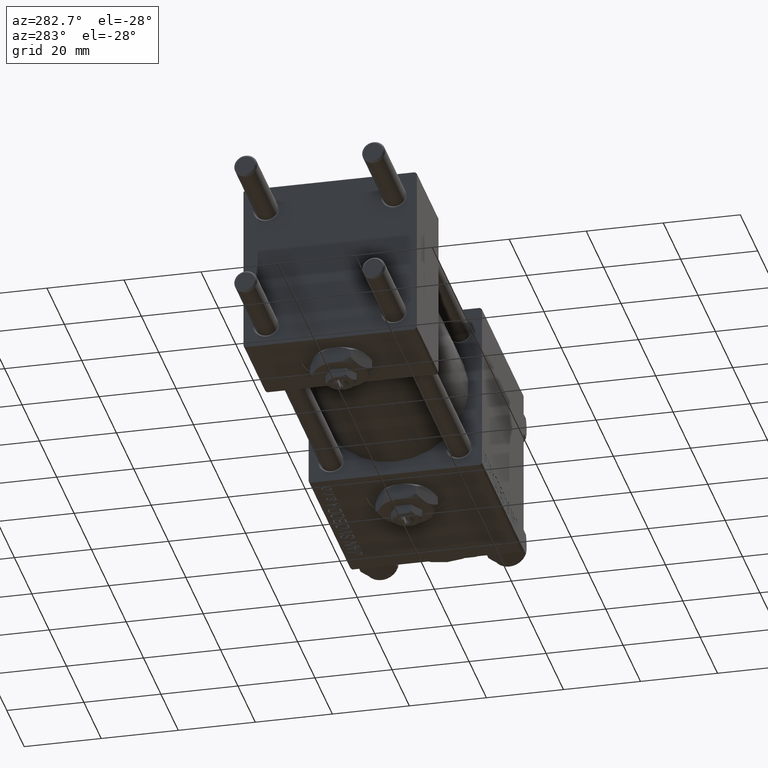
[diagram: clean part render]
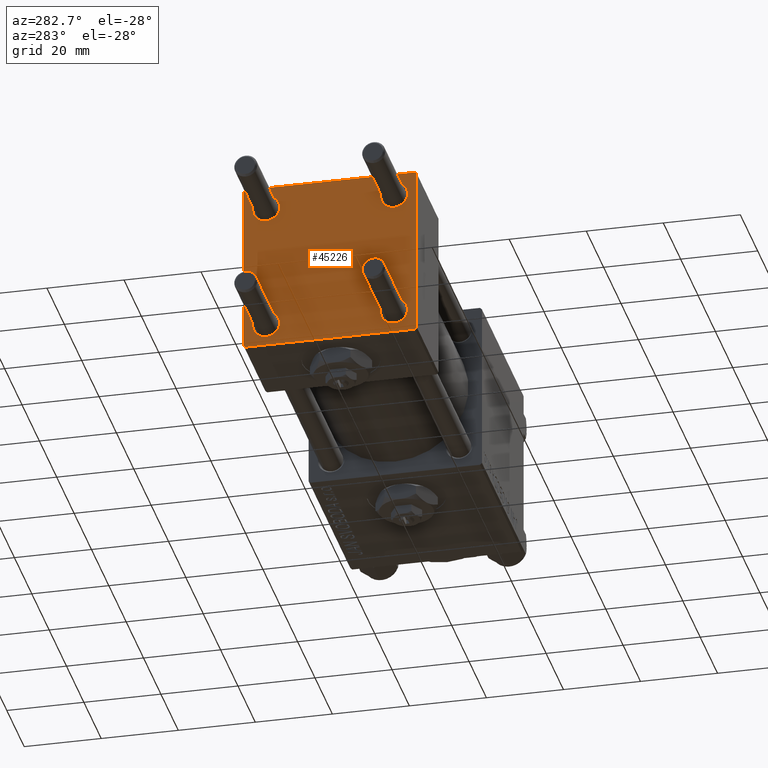
[diagram: same view with one face highlighted and labeled with its STEP entity id]
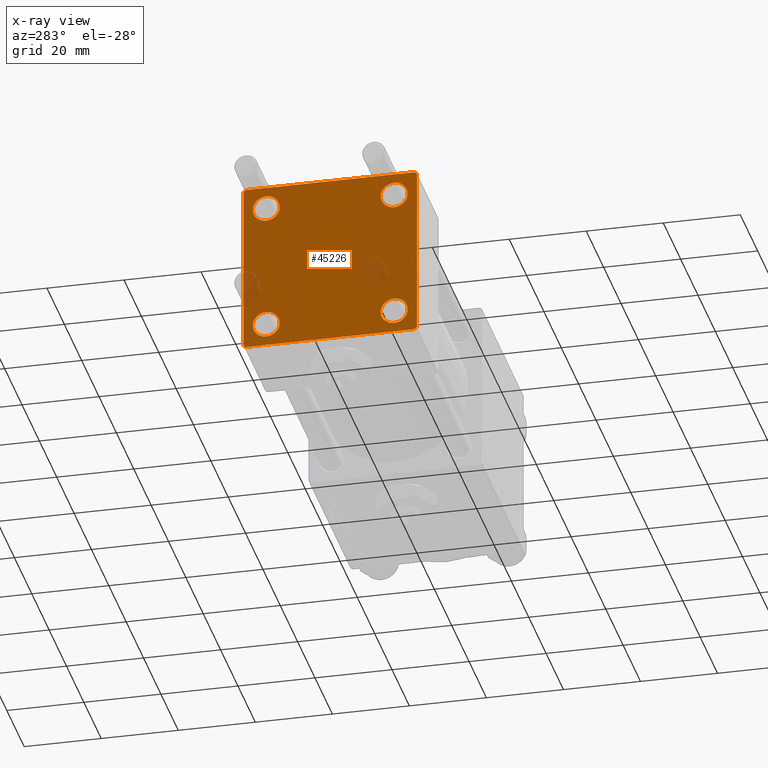
[diagram: x-ray of the same camera — body ghosted, the highlighted face saturated]
A machine part, auxiliary view. The second image highlights one B-rep face of the part: STEP entity #45226.
The next image is the same camera in x-ray: the body ghosted, the highlighted face saturated — about 4% of this face is hidden behind the body in this view.
In plain terms, the highlighted planar face has unit normal (-1, 0, 0).
Its self-contained STEP definition (entity closure, byte-faithful):
#278 = DIRECTION ( 'NONE',  ( 0.000000000000000000, -1.000000000000000000, -2.312964634635742957E-16 ) ) ;
#530 = VERTEX_POINT ( 'NONE', #15935 ) ;
#590 = FACE_BOUND ( 'NONE', #49147, .T. ) ;
#694 = CARTESIAN_POINT ( 'NONE',  ( 0.000000000000000000, -16.59999999999999076, 16.60000000000000853 ) ) ;
#1843 = EDGE_CURVE ( 'NONE', #45567, #32860, #28180, .T. ) ;
#1962 = DIRECTION ( 'NONE',  ( 0.000000000000000000, 0.000000000000000000, 1.000000000000000000 ) ) ;
#2339 = ORIENTED_EDGE ( 'NONE', *, *, #27860, .T. ) ;
#2402 = DIRECTION ( 'NONE',  ( -1.000000000000000000, 0.000000000000000000, -0.000000000000000000 ) ) ;
#2449 = VECTOR ( 'NONE', #28707, 1000.000000000000000 ) ;
#2652 = VECTOR ( 'NONE', #45068, 1000.000000000000114 ) ;
#2976 = CARTESIAN_POINT ( 'NONE',  ( 0.000000000000000000, -16.59999999999999076, -16.60000000000000853 ) ) ;
#3151 = ORIENTED_EDGE ( 'NONE', *, *, #24790, .F. ) ;
#3538 = VERTEX_POINT ( 'NONE', #28434 ) ;
#4366 = DIRECTION ( 'NONE',  ( 0.000000000000000000, 0.000000000000000000, -1.000000000000000000 ) ) ;
#4794 = CARTESIAN_POINT ( 'NONE',  ( 0.000000000000000000, -16.59999999999999076, 20.10000000000000853 ) ) ;
#5118 = AXIS2_PLACEMENT_3D ( 'NONE', #16701, #16189, #27722 ) ;
#5321 = FACE_OUTER_BOUND ( 'NONE', #48009, .T. ) ;
#5980 = CIRCLE ( 'NONE', #5118, 3.499999999999996003 ) ;
#6551 = ORIENTED_EDGE ( 'NONE', *, *, #9251, .T. ) ;
#7159 = DIRECTION ( 'NONE',  ( 0.000000000000000000, 0.000000000000000000, 1.000000000000000000 ) ) ;
#7160 = ORIENTED_EDGE ( 'NONE', *, *, #51713, .T. ) ;
#7568 = PLANE ( 'NONE',  #35749 ) ;
#7896 = CARTESIAN_POINT ( 'NONE',  ( 0.000000000000000000, 22.50000000000000000, -22.49999999999999645 ) ) ;
#8389 = ORIENTED_EDGE ( 'NONE', *, *, #9309, .F. ) ;
#8727 = CARTESIAN_POINT ( 'NONE',  ( 0.000000000000000000, 16.59999999999999787, -20.10000000000000142 ) ) ;
#9251 = EDGE_CURVE ( 'NONE', #3538, #11724, #5980, .T. ) ;
#9309 = EDGE_CURVE ( 'NONE', #21298, #32860, #39765, .T. ) ;
#9427 = CARTESIAN_POINT ( 'NONE',  ( 0.000000000000000000, 21.99999999999999289, 22.50000000000000355 ) ) ;
#9639 = VECTOR ( 'NONE', #38905, 1000.000000000000000 ) ;
#9774 = CARTESIAN_POINT ( 'NONE',  ( 0.000000000000000000, 0.000000000000000000, 0.000000000000000000 ) ) ;
#10596 = CARTESIAN_POINT ( 'NONE',  ( 0.000000000000000000, 16.59999999999999787, -16.60000000000000497 ) ) ;
#11591 = LINE ( 'NONE', #44090, #27110 ) ;
#11724 = VERTEX_POINT ( 'NONE', #18940 ) ;
#12456 = VECTOR ( 'NONE', #278, 1000.000000000000000 ) ;
#12749 = ORIENTED_EDGE ( 'NONE', *, *, #22471, .T. ) ;
#13014 = CIRCLE ( 'NONE', #13844, 3.499999999999996003 ) ;
#13208 = ORIENTED_EDGE ( 'NONE', *, *, #27675, .T. ) ;
#13458 = FACE_BOUND ( 'NONE', #49980, .T. ) ;
#13654 = AXIS2_PLACEMENT_3D ( 'NONE', #10596, #23173, #7159 ) ;
#13844 = AXIS2_PLACEMENT_3D ( 'NONE', #33948, #26865, #41806 ) ;
#14347 = VECTOR ( 'NONE', #4366, 1000.000000000000000 ) ;
#15473 = DIRECTION ( 'NONE',  ( 0.000000000000000000, 0.000000000000000000, 1.000000000000000000 ) ) ;
#15734 = ORIENTED_EDGE ( 'NONE', *, *, #17621, .T. ) ;
#15935 = CARTESIAN_POINT ( 'NONE',  ( 0.000000000000000000, -16.59999999999999076, -13.10000000000001030 ) ) ;
#16040 = ORIENTED_EDGE ( 'NONE', *, *, #31025, .T. ) ;
#16158 = CIRCLE ( 'NONE', #13654, 3.499999999999996003 ) ;
#16189 = DIRECTION ( 'NONE',  ( 1.000000000000000000, -0.000000000000000000, 0.000000000000000000 ) ) ;
#16316 = CARTESIAN_POINT ( 'NONE',  ( 0.000000000000000000, -16.59999999999999076, -20.10000000000000497 ) ) ;
#16492 = CARTESIAN_POINT ( 'NONE',  ( 0.000000000000000000, 22.50000000000000000, -21.99999999999996803 ) ) ;
#16701 = CARTESIAN_POINT ( 'NONE',  ( 0.000000000000000000, 16.59999999999999787, 16.60000000000000497 ) ) ;
#16811 = ORIENTED_EDGE ( 'NONE', *, *, #32024, .T. ) ;
#17308 = VECTOR ( 'NONE', #33277, 1000.000000000000000 ) ;
#17621 = EDGE_CURVE ( 'NONE', #40059, #40343, #20445, .T. ) ;
#18747 = AXIS2_PLACEMENT_3D ( 'NONE', #25775, #32855, #29441 ) ;
#18940 = CARTESIAN_POINT ( 'NONE',  ( 0.000000000000000000, 16.59999999999999787, 20.10000000000000142 ) ) ;
#19487 = EDGE_CURVE ( 'NONE', #28861, #27203, #16158, .T. ) ;
#19672 = CARTESIAN_POINT ( 'NONE',  ( 0.000000000000000000, 16.59999999999999787, -16.60000000000000497 ) ) ;
#19935 = DIRECTION ( 'NONE',  ( 1.000000000000000000, -0.000000000000000000, 0.000000000000000000 ) ) ;
#20255 = DIRECTION ( 'NONE',  ( 0.000000000000000000, -1.000000000000000000, -7.709882115452476934E-17 ) ) ;
#20445 = LINE ( 'NONE', #36669, #2652 ) ;
#20917 = DIRECTION ( 'NONE',  ( 0.000000000000000000, 0.000000000000000000, 1.000000000000000000 ) ) ;
#21083 = FACE_BOUND ( 'NONE', #49990, .T. ) ;
#21197 = EDGE_CURVE ( 'NONE', #30694, #530, #44680, .T. ) ;
#21298 = VERTEX_POINT ( 'NONE', #27643 ) ;
#21301 = CIRCLE ( 'NONE', #18747, 3.499999999999996003 ) ;
#21865 = VERTEX_POINT ( 'NONE', #29317 ) ;
#22322 = ORIENTED_EDGE ( 'NONE', *, *, #1843, .T. ) ;
#22471 = EDGE_CURVE ( 'NONE', #530, #30694, #21301, .T. ) ;
#22938 = LINE ( 'NONE', #25837, #9639 ) ;
#23173 = DIRECTION ( 'NONE',  ( 1.000000000000000000, -0.000000000000000000, 0.000000000000000000 ) ) ;
#23586 = DIRECTION ( 'NONE',  ( -0.000000000000000000, 0.000000000000000000, 1.000000000000000000 ) ) ;
#23896 = ORIENTED_EDGE ( 'NONE', *, *, #31458, .T. ) ;
#24790 = EDGE_CURVE ( 'NONE', #40059, #21865, #11591, .T. ) ;
#25775 = CARTESIAN_POINT ( 'NONE',  ( 0.000000000000000000, -16.59999999999999076, -16.60000000000000853 ) ) ;
#25837 = CARTESIAN_POINT ( 'NONE',  ( 0.000000000000000000, 22.50000000000000000, 22.50000000000000355 ) ) ;
#26443 = CARTESIAN_POINT ( 'NONE',  ( 0.000000000000000000, -21.99999999999997158, -22.50000000000000711 ) ) ;
#26520 = AXIS2_PLACEMENT_3D ( 'NONE', #19672, #19935, #15473 ) ;
#26865 = DIRECTION ( 'NONE',  ( 1.000000000000000000, -0.000000000000000000, 0.000000000000000000 ) ) ;
#27110 = VECTOR ( 'NONE', #20255, 1000.000000000000000 ) ;
#27203 = VERTEX_POINT ( 'NONE', #48786 ) ;
#27643 = CARTESIAN_POINT ( 'NONE',  ( 0.000000000000000000, -22.50000000000000000, 22.00000000000000000 ) ) ;
#27675 = EDGE_CURVE ( 'NONE', #11724, #3538, #13014, .T. ) ;
#27680 = EDGE_CURVE ( 'NONE', #40343, #48527, #22938, .T. ) ;
#27722 = DIRECTION ( 'NONE',  ( 0.000000000000000000, 0.000000000000000000, 1.000000000000000000 ) ) ;
#27860 = EDGE_CURVE ( 'NONE', #21298, #21865, #39150, .T. ) ;
#28081 = CIRCLE ( 'NONE', #44854, 3.499999999999996003 ) ;
#28180 = LINE ( 'NONE', #40497, #2449 ) ;
#28434 = CARTESIAN_POINT ( 'NONE',  ( 0.000000000000000000, 16.59999999999999787, 13.10000000000000675 ) ) ;
#28707 = DIRECTION ( 'NONE',  ( 0.000000000000000000, -0.7071067811865426878, 0.7071067811865524577 ) ) ;
#28861 = VERTEX_POINT ( 'NONE', #8727 ) ;
#29317 = CARTESIAN_POINT ( 'NONE',  ( 0.000000000000000000, -21.99999999999997868, 22.50000000000000000 ) ) ;
#29441 = DIRECTION ( 'NONE',  ( 0.000000000000000000, 0.000000000000000000, 1.000000000000000000 ) ) ;
#29537 = EDGE_CURVE ( 'NONE', #45168, #30489, #28081, .T. ) ;
#30489 = VERTEX_POINT ( 'NONE', #34728 ) ;
#30694 = VERTEX_POINT ( 'NONE', #16316 ) ;
#30936 = CARTESIAN_POINT ( 'NONE',  ( 0.000000000000000000, 21.99999999999999289, -22.49999999999999645 ) ) ;
#31025 = EDGE_CURVE ( 'NONE', #27203, #28861, #49123, .T. ) ;
#31458 = EDGE_CURVE ( 'NONE', #30489, #45168, #44054, .T. ) ;
#32024 = EDGE_CURVE ( 'NONE', #48527, #48273, #33807, .T. ) ;
#32537 = LINE ( 'NONE', #7896, #12456 ) ;
#32855 = DIRECTION ( 'NONE',  ( 1.000000000000000000, -0.000000000000000000, 0.000000000000000000 ) ) ;
#32860 = VERTEX_POINT ( 'NONE', #44386 ) ;
#32980 = EDGE_LOOP ( 'NONE', ( #16040, #41729 ) ) ;
#33277 = DIRECTION ( 'NONE',  ( -0.000000000000000000, -0.7071067811865426878, -0.7071067811865524577 ) ) ;
#33527 = ORIENTED_EDGE ( 'NONE', *, *, #29537, .T. ) ;
#33807 = LINE ( 'NONE', #37733, #17308 ) ;
#33948 = CARTESIAN_POINT ( 'NONE',  ( 0.000000000000000000, 16.59999999999999787, 16.60000000000000497 ) ) ;
#34219 = DIRECTION ( 'NONE',  ( 1.000000000000000000, -0.000000000000000000, 0.000000000000000000 ) ) ;
#34728 = CARTESIAN_POINT ( 'NONE',  ( 0.000000000000000000, -16.59999999999999076, 13.10000000000001030 ) ) ;
#35215 = CARTESIAN_POINT ( 'NONE',  ( -0.000000000000000000, -22.24999999999984013, 22.25000000000015277 ) ) ;
#35749 = AXIS2_PLACEMENT_3D ( 'NONE', #9774, #2402, #23586 ) ;
#36669 = CARTESIAN_POINT ( 'NONE',  ( 0.000000000000000000, 22.24999999999999645, 22.24999999999999645 ) ) ;
#37055 = FACE_BOUND ( 'NONE', #32980, .T. ) ;
#37733 = CARTESIAN_POINT ( 'NONE',  ( 0.000000000000000000, 22.25000000000014566, -22.24999999999984013 ) ) ;
#38718 = DIRECTION ( 'NONE',  ( 1.000000000000000000, -0.000000000000000000, 0.000000000000000000 ) ) ;
#38905 = DIRECTION ( 'NONE',  ( 0.000000000000000000, 0.000000000000000000, -1.000000000000000000 ) ) ;
#39150 = LINE ( 'NONE', #35215, #47318 ) ;
#39765 = LINE ( 'NONE', #44498, #14347 ) ;
#40059 = VERTEX_POINT ( 'NONE', #9427 ) ;
#40343 = VERTEX_POINT ( 'NONE', #44518 ) ;
#40497 = CARTESIAN_POINT ( 'NONE',  ( 0.000000000000000000, -22.25000000000014566, -22.24999999999984013 ) ) ;
#40815 = DIRECTION ( 'NONE',  ( 1.000000000000000000, -0.000000000000000000, 0.000000000000000000 ) ) ;
#41729 = ORIENTED_EDGE ( 'NONE', *, *, #19487, .T. ) ;
#41806 = DIRECTION ( 'NONE',  ( 0.000000000000000000, 0.000000000000000000, 1.000000000000000000 ) ) ;
#42909 = CARTESIAN_POINT ( 'NONE',  ( 0.000000000000000000, -16.59999999999999076, 16.60000000000000853 ) ) ;
#44054 = CIRCLE ( 'NONE', #49946, 3.499999999999996003 ) ;
#44090 = CARTESIAN_POINT ( 'NONE',  ( 0.000000000000000000, 22.50000000000000000, 22.50000000000000355 ) ) ;
#44386 = CARTESIAN_POINT ( 'NONE',  ( 0.000000000000000000, -22.50000000000000000, -21.99999999999997158 ) ) ;
#44498 = CARTESIAN_POINT ( 'NONE',  ( 0.000000000000000000, -22.50000000000000000, 22.50000000000000000 ) ) ;
#44518 = CARTESIAN_POINT ( 'NONE',  ( 0.000000000000000000, 22.50000000000000000, 21.99999999999999645 ) ) ;
#44680 = CIRCLE ( 'NONE', #51378, 3.499999999999996003 ) ;
#44854 = AXIS2_PLACEMENT_3D ( 'NONE', #42909, #38718, #46347 ) ;
#45068 = DIRECTION ( 'NONE',  ( 0.000000000000000000, 0.7071067811865474617, -0.7071067811865474617 ) ) ;
#45168 = VERTEX_POINT ( 'NONE', #4794 ) ;
#45226 = ADVANCED_FACE ( 'NONE', ( #590, #21083, #37055, #13458, #5321 ), #7568, .T. ) ;
#45567 = VERTEX_POINT ( 'NONE', #26443 ) ;
#46347 = DIRECTION ( 'NONE',  ( 0.000000000000000000, 0.000000000000000000, 1.000000000000000000 ) ) ;
#47292 = DIRECTION ( 'NONE',  ( -0.000000000000000000, 0.7071067811865525687, 0.7071067811865425767 ) ) ;
#47318 = VECTOR ( 'NONE', #47292, 999.9999999999998863 ) ;
#48009 = EDGE_LOOP ( 'NONE', ( #48134, #16811, #7160, #22322, #8389, #2339, #3151, #15734 ) ) ;
#48134 = ORIENTED_EDGE ( 'NONE', *, *, #27680, .T. ) ;
#48273 = VERTEX_POINT ( 'NONE', #30936 ) ;
#48527 = VERTEX_POINT ( 'NONE', #16492 ) ;
#48786 = CARTESIAN_POINT ( 'NONE',  ( 0.000000000000000000, 16.59999999999999787, -13.10000000000000675 ) ) ;
#49123 = CIRCLE ( 'NONE', #26520, 3.499999999999996003 ) ;
#49147 = EDGE_LOOP ( 'NONE', ( #33527, #23896 ) ) ;
#49946 = AXIS2_PLACEMENT_3D ( 'NONE', #694, #40815, #20917 ) ;
#49980 = EDGE_LOOP ( 'NONE', ( #13208, #6551 ) ) ;
#49990 = EDGE_LOOP ( 'NONE', ( #12749, #50105 ) ) ;
#50105 = ORIENTED_EDGE ( 'NONE', *, *, #21197, .T. ) ;
#51378 = AXIS2_PLACEMENT_3D ( 'NONE', #2976, #34219, #1962 ) ;
#51713 = EDGE_CURVE ( 'NONE', #48273, #45567, #32537, .T. ) ;